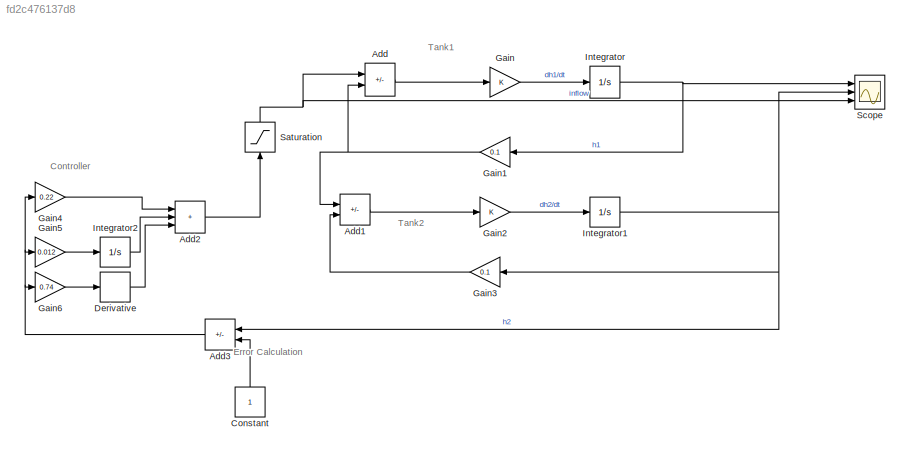
MODEL slx_fd2c476137d8
KIND model
CONFIG AbsTol = auto
CONFIG EnableMultiTasking = off
CONFIG FixedStep = auto
CONFIG MaxStep = auto
CONFIG MinStep = auto
CONFIG RelTol = 1e-3
CONFIG SampleTimeConstraint = Unconstrained
CONFIG Solver = VariableStepAuto
CONFIG SolverName = VariableStepAuto
CONFIG StartTime = 0.0
CONFIG StopTime = 100
BLOCK [Sum] Add
  IconShape = rectangular
  Inputs = +-
  Ports = [2, 1]
BLOCK [Sum] Add1
  IconShape = rectangular
  Inputs = +-
  Ports = [2, 1]
BLOCK [Sum] Add2
  IconShape = rectangular
  Inputs = +++
  Ports = [3, 1]
BLOCK [Sum] Add3
  IconShape = rectangular
  Inputs = -+
  NameLocation = top
  Ports = [2, 1]
BLOCK [Constant] Constant
  NameLocation = right
BLOCK [Derivative] Derivative
BLOCK [Gain] Gain
BLOCK [Gain] Gain1
  Gain = 0.1
  NameLocation = top
BLOCK [Gain] Gain2
BLOCK [Gain] Gain3
  Gain = 0.1
  NameLocation = top
BLOCK [Gain] Gain4
  Gain = 0.22
BLOCK [Gain] Gain5
  Gain = 0.012
BLOCK [Gain] Gain6
  Gain = 0.74
BLOCK [Integrator] Integrator
  LowerSaturationLimit = 0
  Ports = [1, 1]
  UpperSaturationLimit = 2
BLOCK [Integrator] Integrator1
  LowerSaturationLimit = 0
  Ports = [1, 1]
  UpperSaturationLimit = 2
BLOCK [Integrator] Integrator2
  LowerSaturationLimit = 0
  Ports = [1, 1]
BLOCK [Saturate] Saturation
  LowerLimit = 0
  NameLocation = right
  UpperLimit = inf
BLOCK [Scope] Scope
  Floating = off
  NumInputPorts = 3
  Ports = [3]
  ScopeSpecificationString = Simulink.scopes.TimeScopeBlockCfg('CurrentConfiguration', extmgr.ConfigurationSet(extmgr.Configuration('Core','General UI',true,'DisplayFullSourceName',true),extmgr.Configuration('Core','Source UI',true),extmgr.Configuration('Sources','WiredSimulink',true),extmgr.Configuration('Visuals','Time Domain',true,'SerializedDisplays',{struct('MinYLimReal','-0.8125','MaxYLimReal','2.3125','YLabelReal','','...<+1455ch>
ANNOTATION (root): Controller
ANNOTATION (root): Error Calculation
ANNOTATION (root): Tank1
ANNOTATION (root): Tank2
LINE Add1:1 -> Gain2:1
LINE Add2:1 -> Saturation:1
NET Add3:1 -> Gain4:1, Gain5:1, Gain6:1
LINE Add:1 -> Gain:1
LINE Constant:1 -> Add3:2
LINE Derivative:1 -> Add2:3
NET Gain1:1 -> Add1:1, Add:2
LINE Gain2:1 -> Integrator1:1
LINE Gain3:1 -> Add1:2
LINE Gain4:1 -> Add2:1
LINE Gain5:1 -> Integrator2:1
LINE Gain6:1 -> Derivative:1
LINE Gain:1 -> Integrator:1
NET Integrator1:1 -> Add3:1, Gain3:1, Scope:2
LINE Integrator2:1 -> Add2:2
NET Integrator:1 -> Gain1:1, Scope:1
NET Saturation:1 -> Add:1, Scope:3
note: NET lines group one-source signal fan-out (src -> all destinations, sorted); 1:1 wires keep LINE
